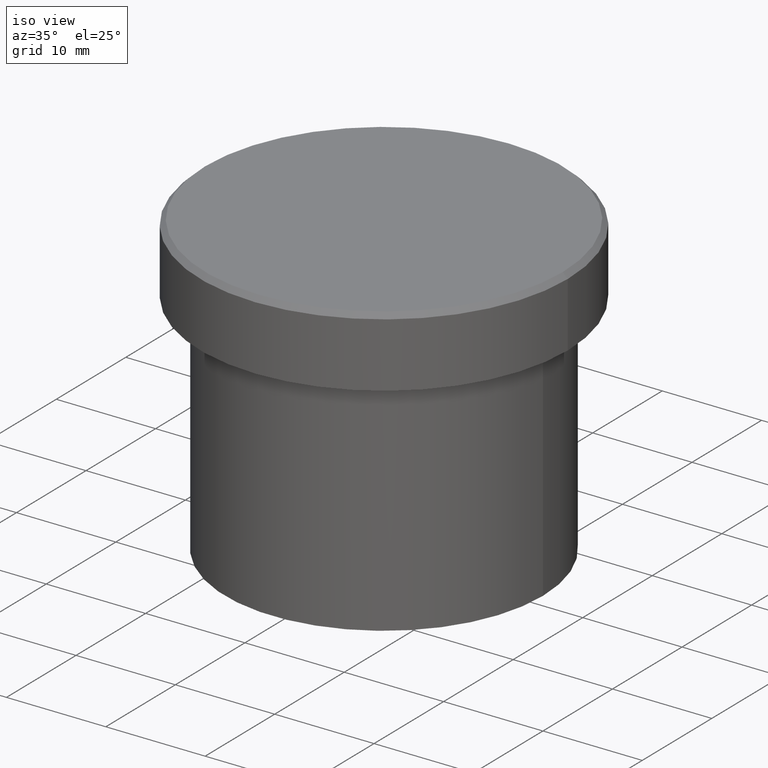
[diagram: clean part render]
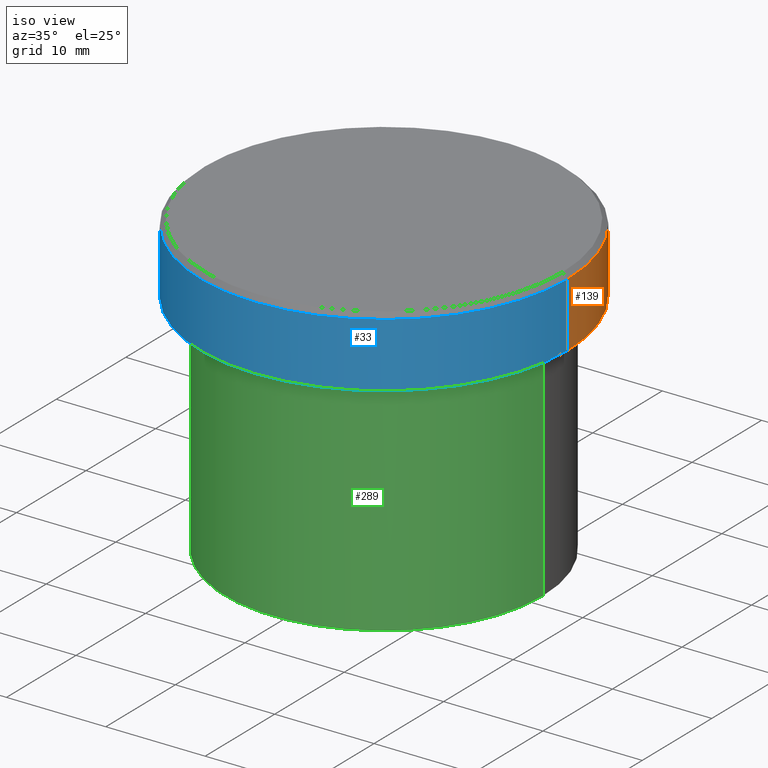
[diagram: same view with three faces highlighted in distinct colors, each labeled with its STEP entity id]
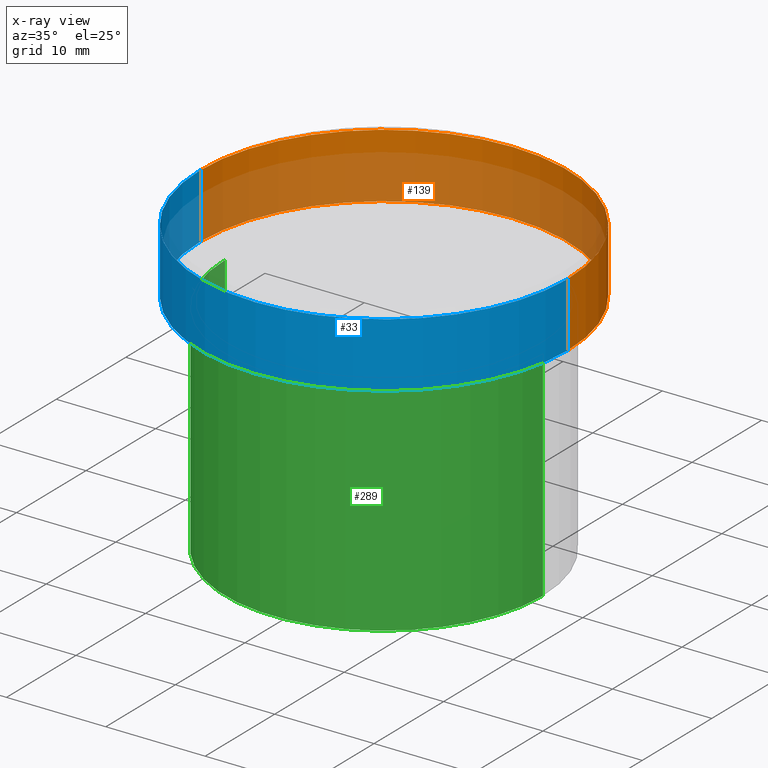
[diagram: x-ray of the same camera — body ghosted, the three highlighted faces saturated]
A machine part, iso view with three faces highlighted in distinct colors.
The next image is the same camera in x-ray (body ghosted, the three faces saturated) — at least one of them is partly hidden behind the body in this view.
Their STEP definitions:

[orange] entity #139 — the highlighted cylindrical surface (partial cylindrical patch) has radius 18.5 mm, axis along (-0, -0, 1).
#6 = ORIENTED_EDGE ( 'NONE', *, *, #119, .T. ) ;
#15 = VERTEX_POINT ( 'NONE', #297 ) ;
#17 = LINE ( 'NONE', #367, #252 ) ;
#19 = EDGE_CURVE ( 'NONE', #15, #168, #17, .T. ) ;
#34 = CIRCLE ( 'NONE', #148, 18.50000000000000000 ) ;
#39 = ORIENTED_EDGE ( 'NONE', *, *, #19, .F. ) ;
#45 = VERTEX_POINT ( 'NONE', #409 ) ;
#61 = DIRECTION ( 'NONE',  ( -0.000000000000000000, -0.000000000000000000, 1.000000000000000000 ) ) ;
#70 = AXIS2_PLACEMENT_3D ( 'NONE', #306, #61, #309 ) ;
#80 = CARTESIAN_POINT ( 'NONE',  ( -18.50000000000000000, 2.265596578422603396E-15, -0.5000000000000004441 ) ) ;
#89 = DIRECTION ( 'NONE',  ( -0.000000000000000000, -0.000000000000000000, 1.000000000000000000 ) ) ;
#101 = CARTESIAN_POINT ( 'NONE',  ( 0.000000000000000000, 0.000000000000000000, -6.999999999999998224 ) ) ;
#103 = CARTESIAN_POINT ( 'NONE',  ( 18.50000000000000000, 0.000000000000000000, -0.5000000000000004441 ) ) ;
#119 = EDGE_CURVE ( 'NONE', #15, #45, #34, .T. ) ;
#129 = FACE_OUTER_BOUND ( 'NONE', #283, .T. ) ;
#133 = DIRECTION ( 'NONE',  ( -0.000000000000000000, -0.000000000000000000, 1.000000000000000000 ) ) ;
#139 = ADVANCED_FACE ( 'NONE', ( #129 ), #401, .T. ) ;
#142 = ORIENTED_EDGE ( 'NONE', *, *, #279, .T. ) ;
#147 = CARTESIAN_POINT ( 'NONE',  ( 0.000000000000000000, 0.000000000000000000, -0.5000000000000004441 ) ) ;
#148 = AXIS2_PLACEMENT_3D ( 'NONE', #101, #133, #192 ) ;
#168 = VERTEX_POINT ( 'NONE', #103 ) ;
#192 = DIRECTION ( 'NONE',  ( 1.000000000000000000, 0.000000000000000000, 0.000000000000000000 ) ) ;
#197 = LINE ( 'NONE', #359, #268 ) ;
#200 = DIRECTION ( 'NONE',  ( -0.000000000000000000, -0.000000000000000000, 1.000000000000000000 ) ) ;
#208 = EDGE_CURVE ( 'NONE', #352, #168, #267, .T. ) ;
#239 = ORIENTED_EDGE ( 'NONE', *, *, #208, .T. ) ;
#252 = VECTOR ( 'NONE', #89, 1000.000000000000000 ) ;
#267 = CIRCLE ( 'NONE', #322, 18.50000000000000000 ) ;
#268 = VECTOR ( 'NONE', #200, 1000.000000000000000 ) ;
#279 = EDGE_CURVE ( 'NONE', #45, #352, #197, .T. ) ;
#283 = EDGE_LOOP ( 'NONE', ( #6, #142, #239, #39 ) ) ;
#297 = CARTESIAN_POINT ( 'NONE',  ( 18.50000000000000000, 0.000000000000000000, -6.999999999999998224 ) ) ;
#306 = CARTESIAN_POINT ( 'NONE',  ( 0.000000000000000000, 0.000000000000000000, 0.000000000000000000 ) ) ;
#309 = DIRECTION ( 'NONE',  ( 1.000000000000000000, 0.000000000000000000, 0.000000000000000000 ) ) ;
#322 = AXIS2_PLACEMENT_3D ( 'NONE', #147, #384, #394 ) ;
#352 = VERTEX_POINT ( 'NONE', #80 ) ;
#359 = CARTESIAN_POINT ( 'NONE',  ( -18.50000000000000000, 2.265596578422603396E-15, 0.000000000000000000 ) ) ;
#367 = CARTESIAN_POINT ( 'NONE',  ( 18.50000000000000000, 0.000000000000000000, 0.000000000000000000 ) ) ;
#384 = DIRECTION ( 'NONE',  ( 0.000000000000000000, 0.000000000000000000, -1.000000000000000000 ) ) ;
#394 = DIRECTION ( 'NONE',  ( 1.000000000000000000, 0.000000000000000000, 0.000000000000000000 ) ) ;
#401 = CYLINDRICAL_SURFACE ( 'NONE', #70, 18.50000000000000000 ) ;
#409 = CARTESIAN_POINT ( 'NONE',  ( -18.50000000000000000, 2.265596578422603396E-15, -6.999999999999998224 ) ) ;

[blue] entity #33 — the highlighted cylindrical surface (partial cylindrical patch) has radius 18.5 mm, axis along (-0, -0, 1).
#9 = ORIENTED_EDGE ( 'NONE', *, *, #279, .F. ) ;
#15 = VERTEX_POINT ( 'NONE', #297 ) ;
#17 = LINE ( 'NONE', #367, #252 ) ;
#19 = EDGE_CURVE ( 'NONE', #15, #168, #17, .T. ) ;
#21 = AXIS2_PLACEMENT_3D ( 'NONE', #272, #248, #307 ) ;
#33 = ADVANCED_FACE ( 'NONE', ( #315 ), #277, .T. ) ;
#36 = EDGE_CURVE ( 'NONE', #168, #352, #382, .T. ) ;
#45 = VERTEX_POINT ( 'NONE', #409 ) ;
#80 = CARTESIAN_POINT ( 'NONE',  ( -18.50000000000000000, 2.265596578422603396E-15, -0.5000000000000004441 ) ) ;
#89 = DIRECTION ( 'NONE',  ( -0.000000000000000000, -0.000000000000000000, 1.000000000000000000 ) ) ;
#96 = CIRCLE ( 'NONE', #316, 18.50000000000000000 ) ;
#103 = CARTESIAN_POINT ( 'NONE',  ( 18.50000000000000000, 0.000000000000000000, -0.5000000000000004441 ) ) ;
#104 = DIRECTION ( 'NONE',  ( -0.000000000000000000, -0.000000000000000000, 1.000000000000000000 ) ) ;
#110 = ORIENTED_EDGE ( 'NONE', *, *, #36, .T. ) ;
#158 = ORIENTED_EDGE ( 'NONE', *, *, #19, .T. ) ;
#168 = VERTEX_POINT ( 'NONE', #103 ) ;
#197 = LINE ( 'NONE', #359, #268 ) ;
#200 = DIRECTION ( 'NONE',  ( -0.000000000000000000, -0.000000000000000000, 1.000000000000000000 ) ) ;
#216 = CARTESIAN_POINT ( 'NONE',  ( 0.000000000000000000, 0.000000000000000000, 0.000000000000000000 ) ) ;
#228 = DIRECTION ( 'NONE',  ( 1.000000000000000000, 0.000000000000000000, 0.000000000000000000 ) ) ;
#248 = DIRECTION ( 'NONE',  ( 0.000000000000000000, 0.000000000000000000, -1.000000000000000000 ) ) ;
#252 = VECTOR ( 'NONE', #89, 1000.000000000000000 ) ;
#254 = DIRECTION ( 'NONE',  ( -0.000000000000000000, -0.000000000000000000, 1.000000000000000000 ) ) ;
#268 = VECTOR ( 'NONE', #200, 1000.000000000000000 ) ;
#272 = CARTESIAN_POINT ( 'NONE',  ( 0.000000000000000000, 0.000000000000000000, -0.5000000000000004441 ) ) ;
#277 = CYLINDRICAL_SURFACE ( 'NONE', #398, 18.50000000000000000 ) ;
#278 = DIRECTION ( 'NONE',  ( 1.000000000000000000, 0.000000000000000000, 0.000000000000000000 ) ) ;
#279 = EDGE_CURVE ( 'NONE', #45, #352, #197, .T. ) ;
#297 = CARTESIAN_POINT ( 'NONE',  ( 18.50000000000000000, 0.000000000000000000, -6.999999999999998224 ) ) ;
#303 = EDGE_LOOP ( 'NONE', ( #9, #331, #158, #110 ) ) ;
#307 = DIRECTION ( 'NONE',  ( 1.000000000000000000, 0.000000000000000000, 0.000000000000000000 ) ) ;
#315 = FACE_OUTER_BOUND ( 'NONE', #303, .T. ) ;
#316 = AXIS2_PLACEMENT_3D ( 'NONE', #351, #254, #228 ) ;
#318 = EDGE_CURVE ( 'NONE', #45, #15, #96, .T. ) ;
#331 = ORIENTED_EDGE ( 'NONE', *, *, #318, .T. ) ;
#351 = CARTESIAN_POINT ( 'NONE',  ( 0.000000000000000000, 0.000000000000000000, -6.999999999999998224 ) ) ;
#352 = VERTEX_POINT ( 'NONE', #80 ) ;
#359 = CARTESIAN_POINT ( 'NONE',  ( -18.50000000000000000, 2.265596578422603396E-15, 0.000000000000000000 ) ) ;
#367 = CARTESIAN_POINT ( 'NONE',  ( 18.50000000000000000, 0.000000000000000000, 0.000000000000000000 ) ) ;
#382 = CIRCLE ( 'NONE', #21, 18.50000000000000000 ) ;
#398 = AXIS2_PLACEMENT_3D ( 'NONE', #216, #104, #278 ) ;
#409 = CARTESIAN_POINT ( 'NONE',  ( -18.50000000000000000, 2.265596578422603396E-15, -6.999999999999998224 ) ) ;

[green] entity #289 — the highlighted cylindrical surface (partial cylindrical patch) has radius 16 mm, axis along (-0, -0, 1).
#7 = LINE ( 'NONE', #169, #285 ) ;
#37 = CARTESIAN_POINT ( 'NONE',  ( 0.000000000000000000, 0.000000000000000000, -30.00000000000000000 ) ) ;
#47 = DIRECTION ( 'NONE',  ( 1.000000000000000000, 0.000000000000000000, 0.000000000000000000 ) ) ;
#59 = DIRECTION ( 'NONE',  ( -0.000000000000000000, -0.000000000000000000, 1.000000000000000000 ) ) ;
#63 = AXIS2_PLACEMENT_3D ( 'NONE', #233, #203, #73 ) ;
#69 = EDGE_CURVE ( 'NONE', #232, #156, #250, .T. ) ;
#73 = DIRECTION ( 'NONE',  ( 1.000000000000000000, 0.000000000000000000, 0.000000000000000000 ) ) ;
#84 = CARTESIAN_POINT ( 'NONE',  ( 0.000000000000000000, 0.000000000000000000, -8.000000000000000000 ) ) ;
#111 = DIRECTION ( 'NONE',  ( -0.000000000000000000, -0.000000000000000000, 1.000000000000000000 ) ) ;
#140 = CARTESIAN_POINT ( 'NONE',  ( -16.00000000000000000, 1.959434878635765131E-15, -30.00000000000000000 ) ) ;
#144 = CARTESIAN_POINT ( 'NONE',  ( 16.00000000000000000, 0.000000000000000000, -30.00000000000000000 ) ) ;
#150 = ORIENTED_EDGE ( 'NONE', *, *, #201, .F. ) ;
#156 = VERTEX_POINT ( 'NONE', #163 ) ;
#163 = CARTESIAN_POINT ( 'NONE',  ( 16.00000000000000000, 0.000000000000000000, -8.000000000000000000 ) ) ;
#169 = CARTESIAN_POINT ( 'NONE',  ( -16.00000000000000000, 1.959434878635765131E-15, 0.000000000000000000 ) ) ;
#171 = DIRECTION ( 'NONE',  ( 1.000000000000000000, 0.000000000000000000, 0.000000000000000000 ) ) ;
#172 = ORIENTED_EDGE ( 'NONE', *, *, #69, .T. ) ;
#174 = CIRCLE ( 'NONE', #405, 16.00000000000000000 ) ;
#179 = EDGE_LOOP ( 'NONE', ( #150, #202, #172, #225 ) ) ;
#201 = EDGE_CURVE ( 'NONE', #349, #270, #7, .T. ) ;
#202 = ORIENTED_EDGE ( 'NONE', *, *, #332, .T. ) ;
#203 = DIRECTION ( 'NONE',  ( -0.000000000000000000, -0.000000000000000000, 1.000000000000000000 ) ) ;
#220 = CARTESIAN_POINT ( 'NONE',  ( 16.00000000000000000, 0.000000000000000000, 0.000000000000000000 ) ) ;
#222 = CIRCLE ( 'NONE', #229, 16.00000000000000000 ) ;
#225 = ORIENTED_EDGE ( 'NONE', *, *, #314, .F. ) ;
#229 = AXIS2_PLACEMENT_3D ( 'NONE', #37, #329, #47 ) ;
#232 = VERTEX_POINT ( 'NONE', #144 ) ;
#233 = CARTESIAN_POINT ( 'NONE',  ( 0.000000000000000000, 0.000000000000000000, 0.000000000000000000 ) ) ;
#250 = LINE ( 'NONE', #220, #389 ) ;
#257 = FACE_OUTER_BOUND ( 'NONE', #179, .T. ) ;
#270 = VERTEX_POINT ( 'NONE', #327 ) ;
#285 = VECTOR ( 'NONE', #293, 1000.000000000000000 ) ;
#289 = ADVANCED_FACE ( 'NONE', ( #257 ), #385, .T. ) ;
#293 = DIRECTION ( 'NONE',  ( -0.000000000000000000, -0.000000000000000000, 1.000000000000000000 ) ) ;
#314 = EDGE_CURVE ( 'NONE', #270, #156, #174, .T. ) ;
#327 = CARTESIAN_POINT ( 'NONE',  ( -16.00000000000000000, 1.959434878635765131E-15, -8.000000000000000000 ) ) ;
#329 = DIRECTION ( 'NONE',  ( -0.000000000000000000, -0.000000000000000000, 1.000000000000000000 ) ) ;
#332 = EDGE_CURVE ( 'NONE', #349, #232, #222, .T. ) ;
#349 = VERTEX_POINT ( 'NONE', #140 ) ;
#385 = CYLINDRICAL_SURFACE ( 'NONE', #63, 16.00000000000000000 ) ;
#389 = VECTOR ( 'NONE', #59, 1000.000000000000000 ) ;
#405 = AXIS2_PLACEMENT_3D ( 'NONE', #84, #111, #171 ) ;